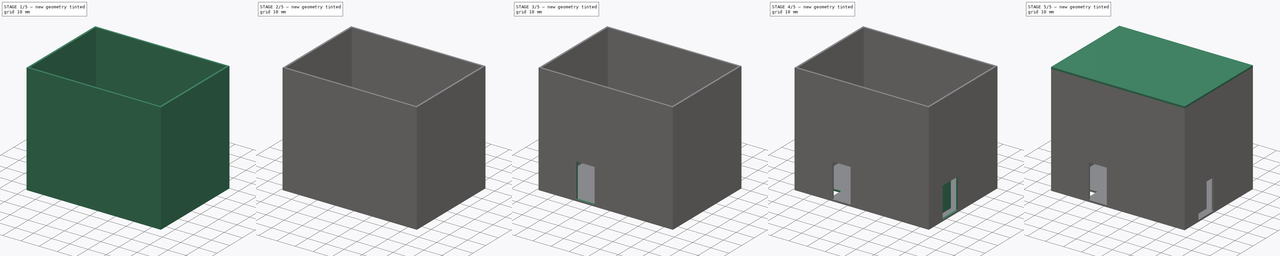
[diagram: build sequence overview — one tinted view per stage of 5, left to right]
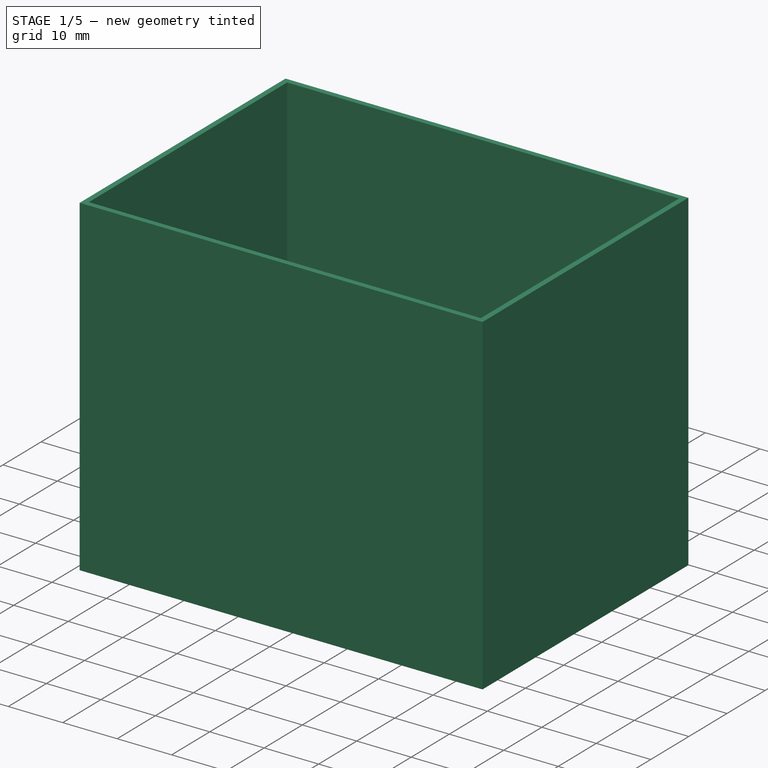
[diagram: stage 1 of 5 — iso view after this stage's code; geometry added in this stage tinted green]
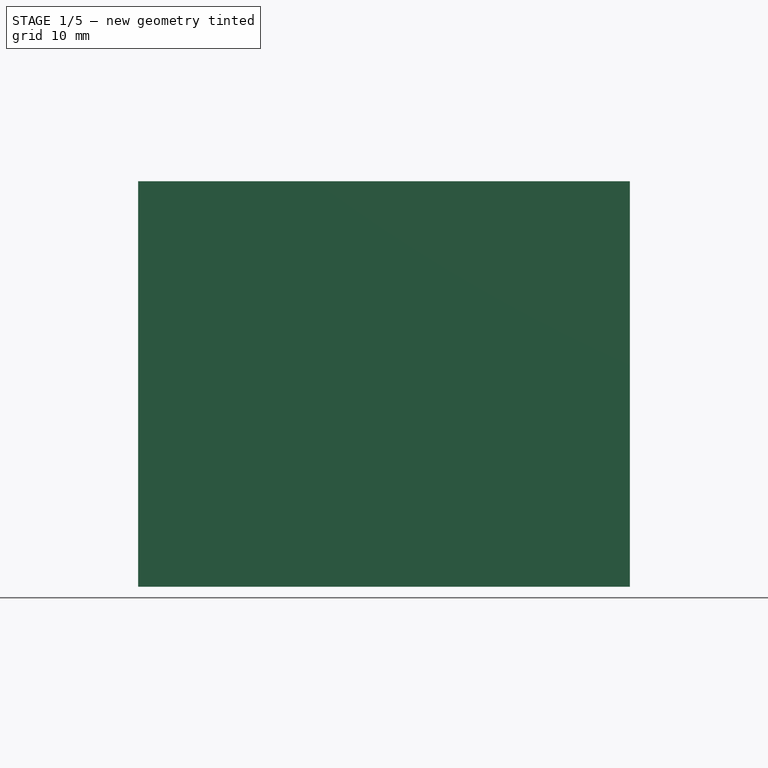
[diagram: stage 1 of 5 — front view after this stage's code; geometry added in this stage tinted green]
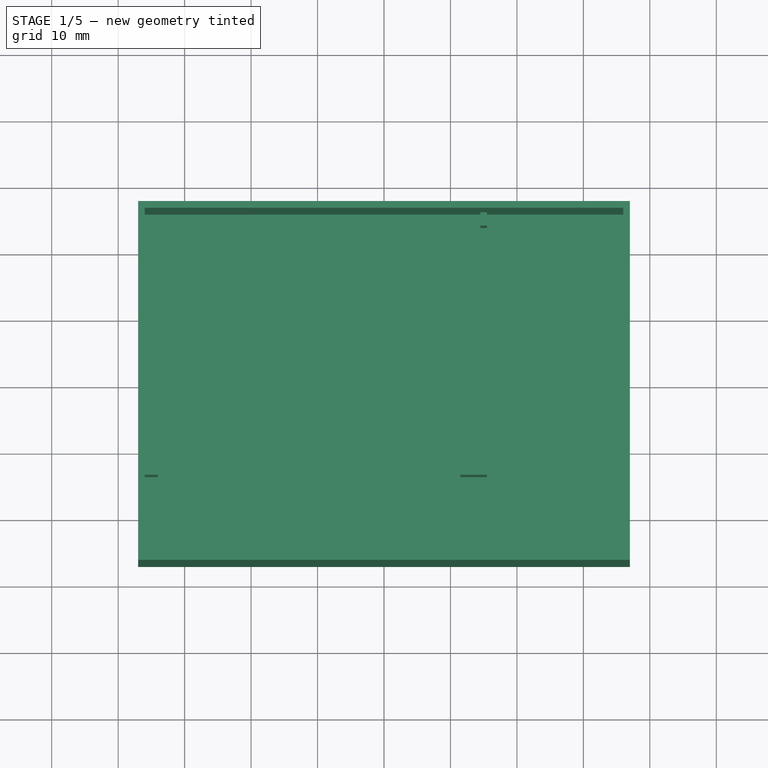
[diagram: stage 1 of 5 — top view after this stage's code; geometry added in this stage tinted green]
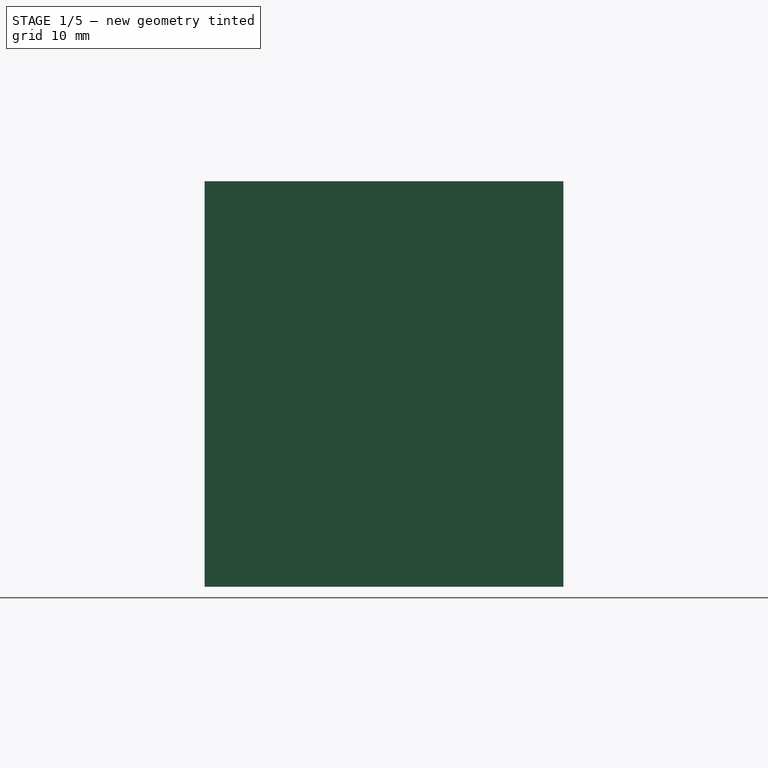
[diagram: stage 1 of 5 — right view after this stage's code; geometry added in this stage tinted green]
FCSTD DOCUMENT  (FreeCAD 0.21R33694 (Git))
Label: 3D-Models
License: All rights reserved
LicenseURL: https://en.wikipedia.org/wiki/All_rights_reserved
objects: Sketcher::SketchObject×13, PartDesign::Pad×7, PartDesign::Pocket×5, PartDesign::Fillet×3, PartDesign::Body×2, PartDesign::Thickness×1, PartDesign::ShapeBinder×1
note: 48 computed .brp shape members not serialized (recipe doc carries the construction recipe); baked Part::Feature solids carry a one-line shape summary decoded from their .brp

FEATURE [Sketcher::SketchObject] Sketch
  FullyConstrained = true
  MapMode = 5
  Support = -> [XY_Plane]
  sketch-geometry (8):
    g0: LineSegment StartX=-35 StartY=25 StartZ=0 EndX=35 EndY=25 EndZ=0
    g1: LineSegment StartX=35 StartY=25 StartZ=0 EndX=35 EndY=-25 EndZ=0
    g2: LineSegment StartX=35 StartY=-25 StartZ=0 EndX=-35 EndY=-25 EndZ=0
    g3: LineSegment StartX=-35 StartY=-25 StartZ=0 EndX=-35 EndY=25 EndZ=0
    g4: LineSegment StartX=-36 StartY=26 StartZ=0 EndX=36 EndY=26 EndZ=0
    g5: LineSegment StartX=36 StartY=26 StartZ=0 EndX=36 EndY=-26 EndZ=0
    g6: LineSegment StartX=36 StartY=-26 StartZ=0 EndX=-36 EndY=-26 EndZ=0
    g7: LineSegment StartX=-36 StartY=-26 StartZ=0 EndX=-36 EndY=26 EndZ=0
  constraints (24):
    c: Coincident(g0,g1)
    c: Coincident(g1,g2)
    c: Coincident(g2,g3)
    c: Coincident(g3,g0)
    c: Horizontal(g0)
    c: Horizontal(g2)
    c: Vertical(g1)
    c: Vertical(g3)
    c: DistanceX(g0,g0) = 70
    c: DistanceY(g3,g3) = 50
    c: DistanceX(g0,g-1) = 35
    c: DistanceY(g-1,g0) = 25
    c: Coincident(g4,g5)
    c: Coincident(g5,g6)
    c: Coincident(g6,g7)
    c: Coincident(g7,g4)
    c: Horizontal(g4)
    c: Horizontal(g6)
    c: Vertical(g5)
    c: Vertical(g7)
    c: DistanceY(g5,g1) = 1
    c: DistanceY(g0,g4) = 1
    c: DistanceX(g4,g0) = 1
    c: DistanceX(g1,g5) = 1
FEATURE [PartDesign::Pad] Pad
  Direction = (0,0,1)
  Length = 60
  Length2 = 10
  Profile = -> Sketch
  ReferenceAxis = -> Sketch [N_Axis]
  Type = 0
FEATURE [PartDesign::Thickness] Thickness
  Base = -> Pad [Face6]
  BaseFeature = -> Pad
  Intersection = false
  Join = 1
  Mode = 0
  SupportTransform = false
  Value = 1
FEATURE [Sketcher::SketchObject] Sketch001
  FullyConstrained = true
  MapMode = 5
  Support = -> [Thickness]
FEATURE [Sketcher::SketchObject] Sketch002
  ExternalGeometry = -> [Thickness]
  FullyConstrained = true
  MapMode = 5
  Support = -> [Thickness]
  sketch-geometry (20):
    g0: LineSegment StartX=-36 StartY=26 StartZ=0 EndX=14.5 EndY=26 EndZ=0
    g1: LineSegment StartX=14.5 StartY=26 StartZ=0 EndX=14.5 EndY=-12.5 EndZ=0
    g2: LineSegment StartX=14.5 StartY=-12.5 StartZ=0 EndX=-36 EndY=-12.5 EndZ=0
    g3: LineSegment StartX=-36 StartY=-12.5 StartZ=0 EndX=-36 EndY=26 EndZ=0
    g4: LineSegment StartX=15.5 StartY=-13.5 StartZ=0 EndX=11.5 EndY=-13.5 EndZ=0
    g5: LineSegment StartX=11.5 StartY=-13.5 StartZ=0 EndX=11.5 EndY=-9.5 EndZ=0
    g6: LineSegment StartX=11.5 StartY=-9.5 StartZ=0 EndX=15.5 EndY=-9.5 EndZ=0
    g7: LineSegment StartX=15.5 StartY=-9.5 StartZ=0 EndX=15.5 EndY=-13.5 EndZ=0
    g8: LineSegment StartX=11.5 StartY=-13.5 StartZ=0 EndX=11.5 EndY=-12.5 EndZ=0
    g9: LineSegment StartX=11.5 StartY=-12.5 StartZ=0 EndX=14.5 EndY=-12.5 EndZ=0
    g10: LineSegment StartX=14.5 StartY=-12.5 StartZ=0 EndX=14.5 EndY=-9.5 EndZ=0
    g11: LineSegment StartX=14.5 StartY=-9.5 StartZ=0 EndX=15.5 EndY=-9.5 EndZ=0
    g12: LineSegment StartX=14.5 StartY=26 StartZ=0 EndX=15.5 EndY=26 EndZ=0
    g13: LineSegment StartX=15.5 StartY=26 StartZ=0 EndX=15.5 EndY=24 EndZ=0
    g14: LineSegment StartX=15.5 StartY=24 StartZ=0 EndX=14.5 EndY=24 EndZ=0
    g15: LineSegment StartX=14.5 StartY=24 StartZ=0 EndX=14.5 EndY=26 EndZ=0
    g16: LineSegment StartX=-36 StartY=-12.5 StartZ=0 EndX=-34 EndY=-12.5 EndZ=0
    g17: LineSegment StartX=-34 StartY=-12.5 StartZ=0 EndX=-34 EndY=-13.5 EndZ=0
    g18: LineSegment StartX=-34 StartY=-13.5 StartZ=0 EndX=-36 EndY=-13.5 EndZ=0
    g19: LineSegment StartX=-36 StartY=-13.5 StartZ=0 EndX=-36 EndY=-12.5 EndZ=0
  constraints (56):
    c: Coincident(g0,g1)
    c: Coincident(g1,g2)
    c: Coincident(g2,g3)
    c: Coincident(g3,g0)
    c: Horizontal(g0)
    c: Horizontal(g2)
    c: Vertical(g1)
    c: Vertical(g3)
    c: Coincident(g0,g-4)
    c: DistanceX(g2,g2) = 50.5
    c: DistanceY(g1,g1) = 38.5
    c: Coincident(g4,g5)
    c: Coincident(g5,g6)
    c: Coincident(g6,g7)
    c: Coincident(g7,g4)
    c: Horizontal(g4)
    c: Horizontal(g6)
    c: Vertical(g5)
    c: Vertical(g7)
    c: DistanceX(g1,g6) = 1
    c: DistanceY(g4,g1) = 1
    c: DistanceX(g4,g1) = 3
    c: DistanceY(g1,g6) = 3
    c: Coincident(g8,g4)
    c: Vertical(g8)
    c: Coincident(g9,g8)
    c: Horizontal(g9)
    c: Coincident(g10,g9)
    c: Vertical(g10)
    c: Coincident(g11,g10)
    c: Coincident(g11,g7)
    c: Horizontal(g11)
    c: DistanceY(g4,g9) = 1
    c: DistanceX(g9,g4) = 1
    c: Coincident(g12,g13)
    c: Coincident(g13,g14)
    c: Coincident(g14,g15)
    c: Coincident(g15,g12)
    c: Horizontal(g12)
    c: Horizontal(g14)
    c: Vertical(g13)
    c: Vertical(g15)
    c: Coincident(g12,g0)
    c: DistanceX(g14,g14) = 1
    c: DistanceY(g13,g13) = 2
    c: Coincident(g16,g17)
    c: Coincident(g17,g18)
    c: Coincident(g18,g19)
    c: Coincident(g19,g16)
    c: Horizontal(g16)
    c: Horizontal(g18)
    c: Vertical(g17)
    c: Vertical(g19)
    c: Coincident(g16,g2)
    c: DistanceX(g18,g18) = 2
    c: DistanceY(g17,g17) = 1
FEATURE [PartDesign::Pad] Pad001
  BaseFeature = -> Thickness
  Direction = (0,0,1)
  Length = 21
  Length2 = 10
  Profile = -> Sketch002
  ReferenceAxis = -> Sketch002 [N_Axis]
  Type = 0
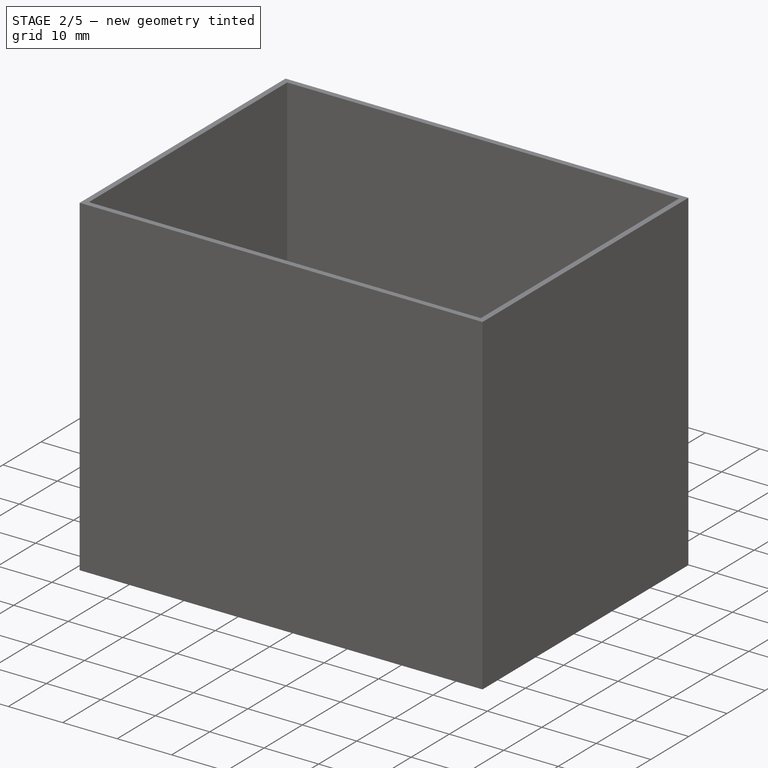
[diagram: stage 2 of 5 — iso view after this stage's code; geometry added in this stage tinted green]
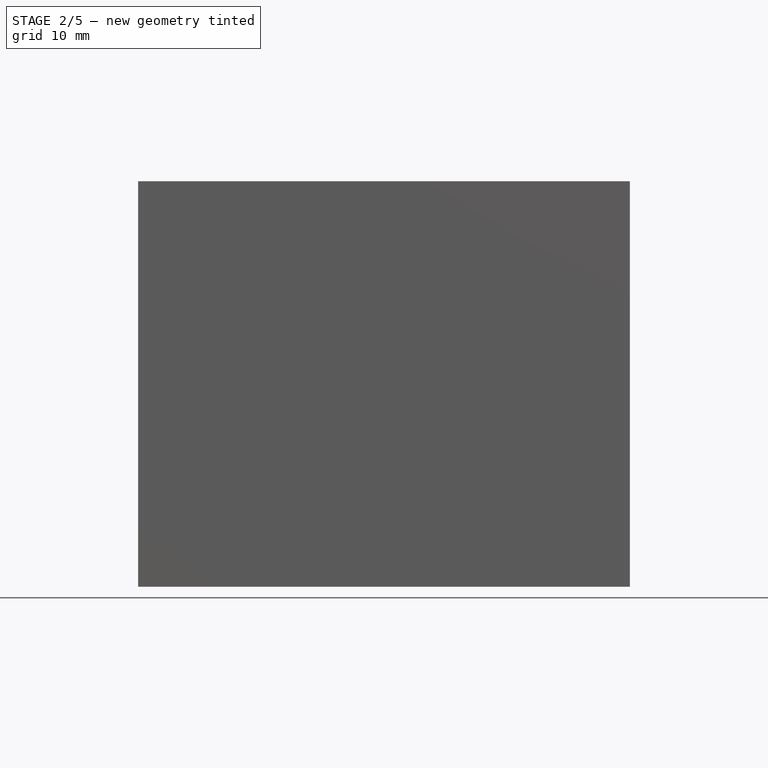
[diagram: stage 2 of 5 — front view after this stage's code; geometry added in this stage tinted green]
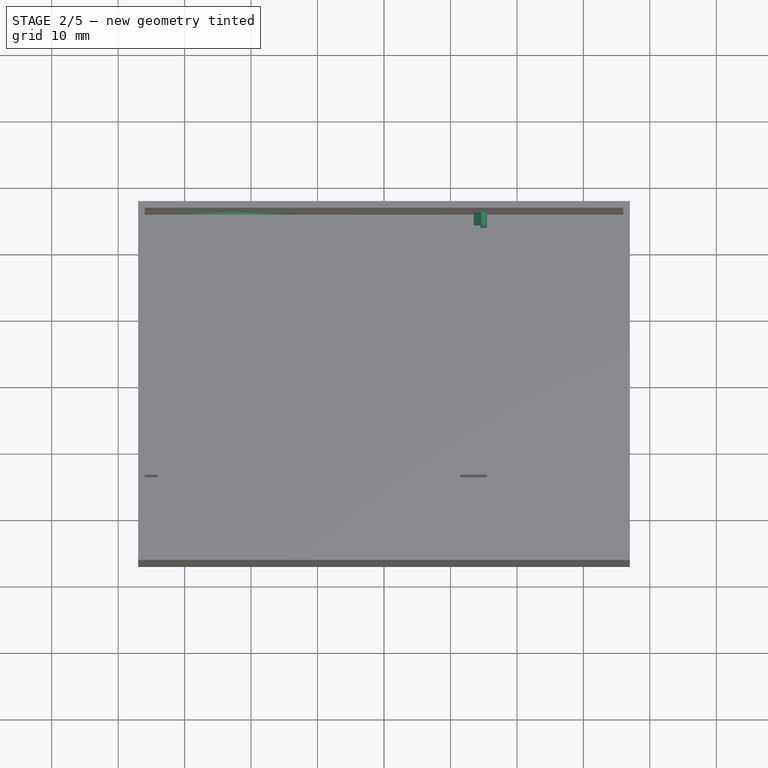
[diagram: stage 2 of 5 — top view after this stage's code; geometry added in this stage tinted green]
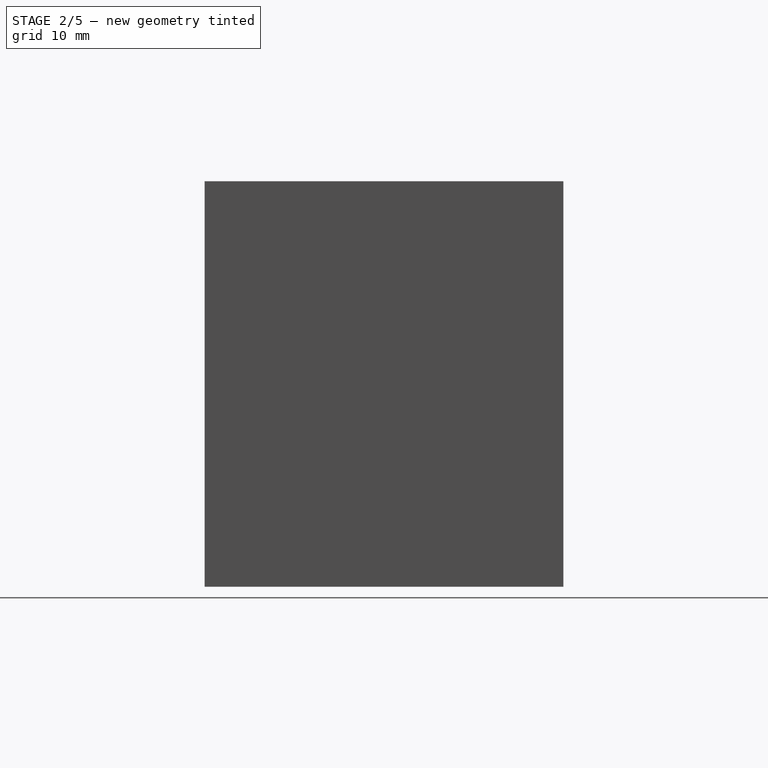
[diagram: stage 2 of 5 — right view after this stage's code; geometry added in this stage tinted green]
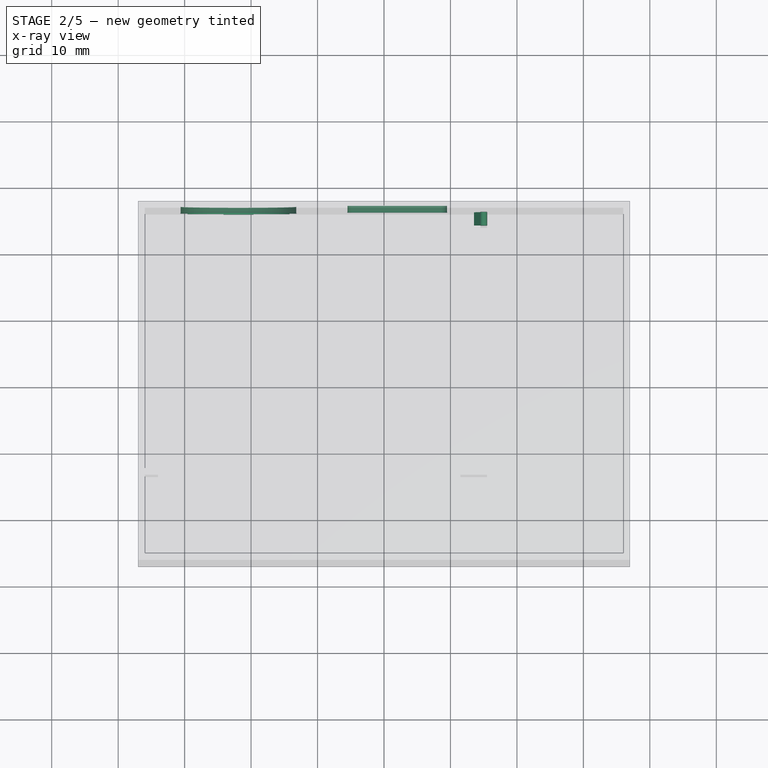
[diagram: stage 2 of 5 — x-ray composite at the top view; earlier geometry ghosted, this stage's added geometry solid]
FEATURE [Sketcher::SketchObject] Sketch003
  ExternalGeometry = -> [Pad001]
  FullyConstrained = true
  MapMode = 5
  Placement = pos=(0,26,0) rot=(1,0,0;1.5708rad)
  Support = -> [Pad001]
  sketch-geometry (17):
    g0: LineSegment StartX=-36 StartY=-1.07e-14 StartZ=0 EndX=14 EndY=-1.07e-14 EndZ=0
    g1: LineSegment StartX=14 StartY=-1.07e-14 StartZ=0 EndX=14 EndY=21 EndZ=0
    g2: LineSegment StartX=14 StartY=21 StartZ=0 EndX=-36 EndY=21 EndZ=0
    g3: LineSegment StartX=-36 StartY=21 StartZ=0 EndX=-36 EndY=-1.07e-14 EndZ=0
    g4: LineSegment StartX=-36 StartY=19 StartZ=0 EndX=-30.6 EndY=19 EndZ=0
    g5: LineSegment StartX=-13.2 StartY=-1.16e-14 StartZ=0 EndX=-13.2 EndY=1.6 EndZ=0
    g6: LineSegment StartX=-30.6 StartY=19 StartZ=0 EndX=-13.2 EndY=19 EndZ=0
    g7: LineSegment StartX=-13.2 StartY=19 StartZ=0 EndX=-13.2 EndY=1.6 EndZ=0
    g8: LineSegment StartX=-13.2 StartY=1.6 StartZ=0 EndX=-30.6 EndY=1.6 EndZ=0
    g9: LineSegment StartX=-30.6 StartY=1.6 StartZ=0 EndX=-30.6 EndY=19 EndZ=0
    g10: Circle CenterX=-21.9 CenterY=10.3 CenterZ=0 NormalX=0 NormalY=0 NormalZ=1 AngleXU=0 Radius=8.7
    g11: LineSegment StartX=-5.5 StartY=21 StartZ=0 EndX=-5.5 EndY=20 EndZ=0
    g12: LineSegment StartX=14 StartY=18 StartZ=0 EndX=9.5 EndY=18 EndZ=0
    g13: LineSegment StartX=-5.5 StartY=20 StartZ=0 EndX=9.5 EndY=20 EndZ=0
    g14: LineSegment StartX=9.5 StartY=20 StartZ=0 EndX=9.5 EndY=18 EndZ=0
    g15: LineSegment StartX=9.5 StartY=18 StartZ=0 EndX=-5.5 EndY=18 EndZ=0
    g16: LineSegment StartX=-5.5 StartY=18 StartZ=0 EndX=-5.5 EndY=20 EndZ=0
  constraints (50):
    c: Coincident(g0,g1)
    c: Coincident(g1,g2)
    c: Coincident(g2,g3)
    c: Coincident(g3,g0)
    c: Horizontal(g0)
    c: Horizontal(g2)
    c: Vertical(g1)
    c: Vertical(g3)
    c: Coincident(g0,g-4)
    c: DistanceX(g2,g2) = 50
    c: DistanceY(g1,g1) = 21
    c: PointOnObject(g4,g3)
    c: Horizontal(g4)
    c: PointOnObject(g5,g0)
    c: Vertical(g5)
    c: DistanceX(g4,g4) = 5.4
    c: DistanceY(g5,g5) = 1.6
    c: Coincident(g6,g7)
    c: Coincident(g7,g8)
    c: Coincident(g8,g9)
    c: Coincident(g9,g6)
    c: Horizontal(g6)
    c: Horizontal(g8)
    c: Vertical(g7)
    c: Vertical(g9)
    c: Coincident(g6,g4)
    c: Coincident(g7,g5)
    c: DistanceX(g8,g8) = 17.4
    c: Equal(g7,g8)
    c: Tangent(g10,g6)
    c: Tangent(g10,g9)
    c: Tangent(g10,g7)
    c: PointOnObject(g11,g2)
    c: Vertical(g11)
    c: PointOnObject(g12,g1)
    c: Horizontal(g12)
    c: DistanceX(g12,g12) = 4.5
    c: DistanceY(g11,g11) = 1
    c: Coincident(g13,g14)
    c: Coincident(g14,g15)
    c: Coincident(g15,g16)
    c: Coincident(g16,g13)
    c: Horizontal(g13)
    c: Horizontal(g15)
    c: Vertical(g14)
    c: Vertical(g16)
    c: Coincident(g13,g11)
    c: Coincident(g14,g12)
    c: DistanceX(g15,g15) = 15
    c: DistanceY(g16,g16) = 2
FEATURE [PartDesign::Pocket] Pocket
  BaseFeature = -> Pad001
  Direction = (0,1,-2e-16)
  Length = 5
  Length2 = 5
  Profile = -> Sketch003
  ReferenceAxis = -> Sketch003 [N_Axis]
  Type = 0
FEATURE [PartDesign::Fillet] Fillet
  Base = -> Pocket [Edge52,Edge49,Edge47,Edge50]
  BaseFeature = -> Pocket
  Radius = 0.99
  SupportTransform = false
  UseAllEdges = false
FEATURE [Sketcher::SketchObject] Sketch004
  ExternalGeometry = -> [Fillet]
  FullyConstrained = true
  MapMode = 5
  Placement = pos=(0,26,0) rot=(1,0,0;1.5708rad)
  Support = -> [Fillet]
  sketch-geometry (5):
    g0: LineSegment StartX=15.5 StartY=21 StartZ=0 EndX=13.5 EndY=21 EndZ=0
    g1: LineSegment StartX=15.5 StartY=21 StartZ=0 EndX=15.5 EndY=22.1972 EndZ=0
    g2: LineSegment StartX=13.5 StartY=21 StartZ=0 EndX=14.5 EndY=22.5 EndZ=0
    g3: ArcOfCircle CenterX=14.9542 CenterY=22.1972 CenterZ=0 NormalX=0 NormalY=0 NormalZ=1 AngleXU=0 Radius=0.545837 StartAngle=-2.7e-15 EndAngle=2.55359
    g4: GeomPoint X=15.5 Y=24 Z=0
  constraints (12):
    c: Coincident(g0,g-4)
    c: Horizontal(g0)
    c: DistanceX(g0,g-3) = 1
    c: Coincident(g1,g0)
    c: Vertical(g1)
    c: Coincident(g2,g0)
    c: DistanceY(g1,g4) = 3
    c: PointOnObject(g4,g2)
    c: PointOnObject(g4,g1)
    c: Tangent(g2,g3) = 1.5708
    c: Tangent(g1,g3) = -1.5708
    c: DistanceX(g-3,g2) = 0
FEATURE [PartDesign::Pad] Pad002
  BaseFeature = -> Fillet
  Direction = (0,-1,2e-16)
  Length = 2
  Length2 = 10
  Profile = -> Sketch004
  ReferenceAxis = -> Sketch004 [N_Axis]
  Type = 3
  UpToFace = -> Fillet [Face19]
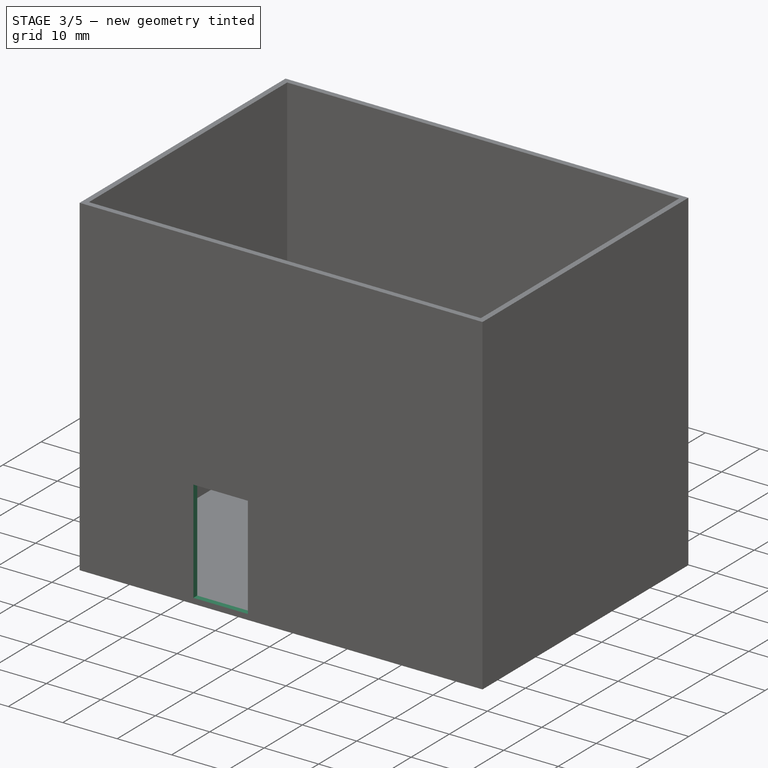
[diagram: stage 3 of 5 — iso view after this stage's code; geometry added in this stage tinted green]
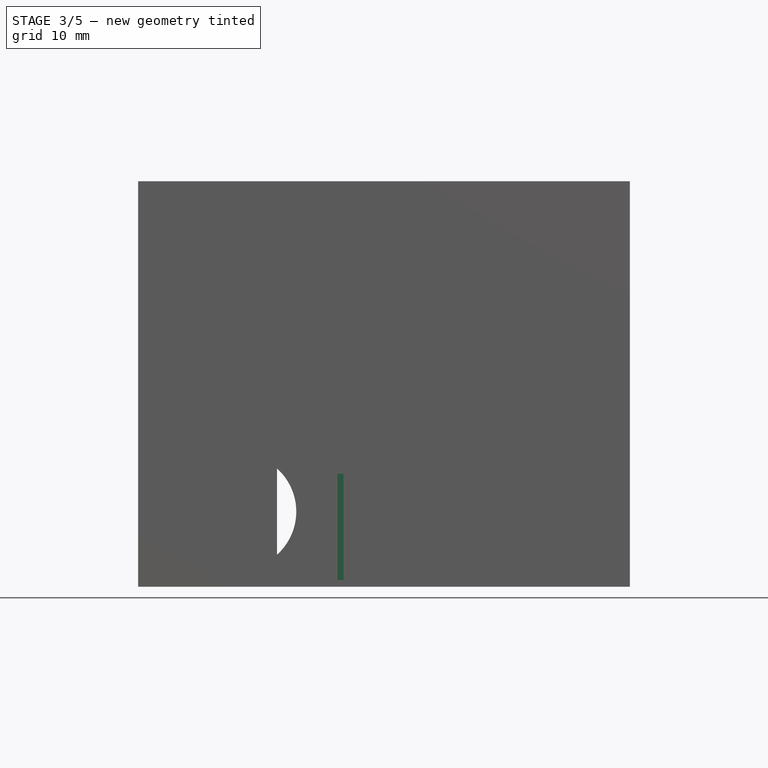
[diagram: stage 3 of 5 — front view after this stage's code; geometry added in this stage tinted green]
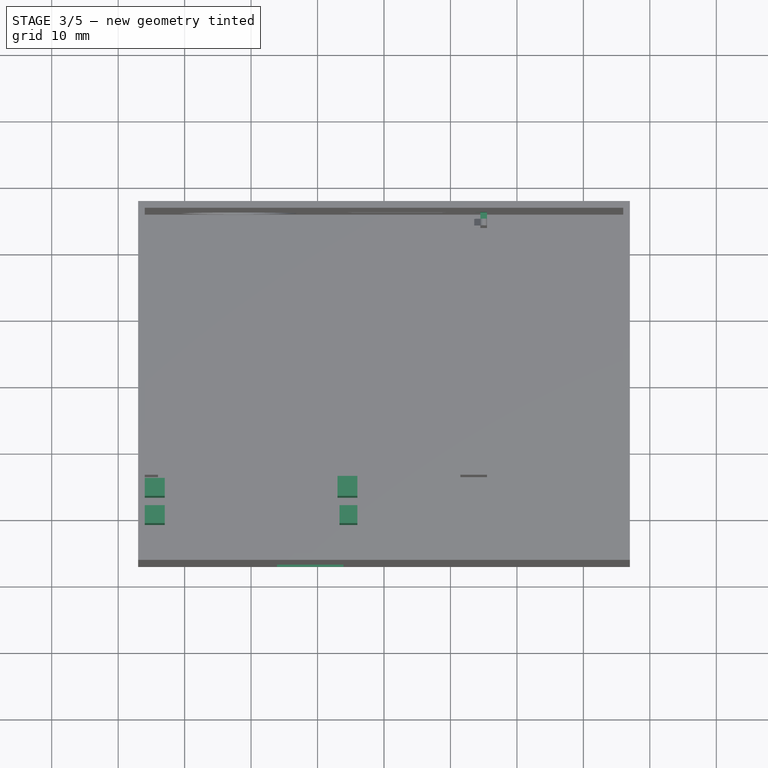
[diagram: stage 3 of 5 — top view after this stage's code; geometry added in this stage tinted green]
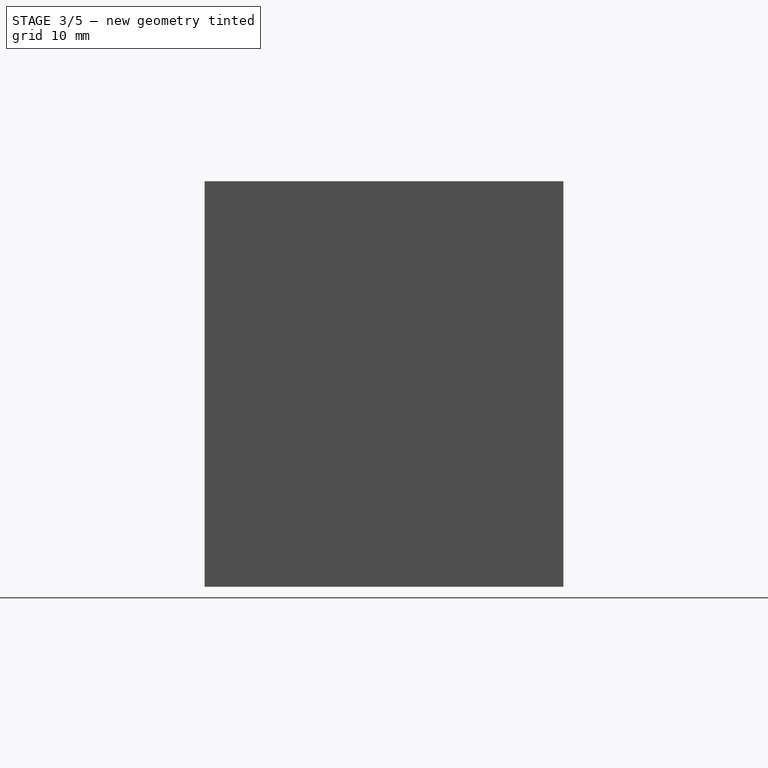
[diagram: stage 3 of 5 — right view after this stage's code; geometry added in this stage tinted green]
FEATURE [Sketcher::SketchObject] Sketch005
  ExternalGeometry = -> [Pad002]
  FullyConstrained = true
  MapMode = 5
  Placement = pos=(15.5,0,0) rot=(0.57735,0.57735,0.57735;2.0944rad)
  Support = -> [Pad002]
  sketch-geometry (9):
    g0: LineSegment StartX=24 StartY=22.7431 StartZ=0 EndX=25 EndY=22.7431 EndZ=0
    g1: LineSegment StartX=25 StartY=22.7431 StartZ=0 EndX=25 EndY=0 EndZ=0
    g2: LineSegment StartX=25 StartY=0 StartZ=0 EndX=24 EndY=0 EndZ=0
    g3: LineSegment StartX=24 StartY=0 StartZ=0 EndX=24 EndY=22.7431 EndZ=0
    g4: LineSegment StartX=25 StartY=18.7431 StartZ=0 EndX=26 EndY=18.7431 EndZ=0
    g5: LineSegment StartX=25 StartY=22.7431 StartZ=0 EndX=26 EndY=22.7431 EndZ=0
    g6: LineSegment StartX=26 StartY=22.7431 StartZ=0 EndX=26 EndY=18.7431 EndZ=0
    g7: LineSegment StartX=26 StartY=18.7431 StartZ=0 EndX=25 EndY=18.7431 EndZ=0
    g8: LineSegment StartX=25 StartY=18.7431 StartZ=0 EndX=25 EndY=22.7431 EndZ=0
  constraints (25):
    c: Coincident(g0,g1)
    c: Coincident(g1,g2)
    c: Coincident(g2,g3)
    c: Coincident(g3,g0)
    c: Horizontal(g0)
    c: Horizontal(g2)
    c: Vertical(g1)
    c: Vertical(g3)
    c: Coincident(g0,g-5)
    c: PointOnObject(g1,g-1)
    c: PointOnObject(g4,g1)
    c: PointOnObject(g4,g-6)
    c: Horizontal(g4)
    c: DistanceX(g4,g4) = 1
    c: DistanceY(g4,g0) = 4
    c: Coincident(g5,g6)
    c: Coincident(g6,g7)
    c: Coincident(g7,g8)
    c: Coincident(g8,g5)
    c: Horizontal(g5)
    c: Horizontal(g7)
    c: Vertical(g6)
    c: Vertical(g8)
    c: Coincident(g5,g0)
    c: Coincident(g6,g4)
FEATURE [PartDesign::Pocket] Pocket001
  BaseFeature = -> Pad002
  Direction = (-1,0,0)
  Length = 2
  Length2 = 5
  Profile = -> Sketch005
  ReferenceAxis = -> Sketch005 [N_Axis]
  Type = 0
FEATURE [PartDesign::Fillet] Fillet001
  Base = -> Pocket001 [Edge109]
  BaseFeature = -> Pocket001
  Radius = 0.1
  SupportTransform = false
  UseAllEdges = false
FEATURE [Sketcher::SketchObject] Sketch006
  ExternalGeometry = -> [Fillet001]
  FullyConstrained = true
  MapMode = 5
  Support = -> [Fillet001]
  sketch-geometry (26):
    g0: LineSegment StartX=-33 StartY=-16.6 StartZ=0 EndX=-7 EndY=-16.6 EndZ=0
    g1: LineSegment StartX=-7 StartY=-16.6 StartZ=0 EndX=-7 EndY=-26 EndZ=0
    g2: LineSegment StartX=-7 StartY=-26 StartZ=0 EndX=-33 EndY=-26 EndZ=0
    g3: LineSegment StartX=-33 StartY=-26 StartZ=0 EndX=-33 EndY=-16.6 EndZ=0
    g4: LineSegment StartX=-7 StartY=-16.6 StartZ=0 EndX=-4 EndY=-16.6 EndZ=0
    g5: LineSegment StartX=-4 StartY=-16.6 StartZ=0 EndX=-4 EndY=-18 EndZ=0
    g6: LineSegment StartX=-4 StartY=-18 StartZ=0 EndX=-7 EndY=-18 EndZ=0
    g7: LineSegment StartX=-33 StartY=-16.6 StartZ=0 EndX=-36 EndY=-16.6 EndZ=0
    g8: LineSegment StartX=-36 StartY=-16.6 StartZ=0 EndX=-36 EndY=-18 EndZ=0
    g9: LineSegment StartX=-36 StartY=-18 StartZ=0 EndX=-33 EndY=-18 EndZ=0
    g10: LineSegment StartX=-4 StartY=-18 StartZ=0 EndX=-6.7 EndY=-18 EndZ=0
    g11: LineSegment StartX=-6.7 StartY=-18 StartZ=0 EndX=-6.7 EndY=-20.7 EndZ=0
    g12: LineSegment StartX=-6.7 StartY=-20.7 StartZ=0 EndX=-4 EndY=-20.7 EndZ=0
    g13: LineSegment StartX=-4 StartY=-20.7 StartZ=0 EndX=-4 EndY=-18 EndZ=0
    g14: LineSegment StartX=-33 StartY=-18 StartZ=0 EndX=-36 EndY=-18 EndZ=0
    g15: LineSegment StartX=-36 StartY=-18 StartZ=0 EndX=-36 EndY=-20.7 EndZ=0
    g16: LineSegment StartX=-36 StartY=-20.7 StartZ=0 EndX=-33 EndY=-20.7 EndZ=0
    g17: LineSegment StartX=-33 StartY=-20.7 StartZ=0 EndX=-33 EndY=-18 EndZ=0
    g18: LineSegment StartX=-33 StartY=-16.6 StartZ=0 EndX=-36 EndY=-16.6 EndZ=0
    g19: LineSegment StartX=-36 StartY=-16.6 StartZ=0 EndX=-36 EndY=-13.9 EndZ=0
    g20: LineSegment StartX=-36 StartY=-13.9 StartZ=0 EndX=-33 EndY=-13.9 EndZ=0
    g21: LineSegment StartX=-33 StartY=-13.9 StartZ=0 EndX=-33 EndY=-16.6 EndZ=0
    g22: LineSegment StartX=-4 StartY=-16.6 StartZ=0 EndX=-7 EndY=-16.6 EndZ=0
    g23: LineSegment StartX=-7 StartY=-16.6 StartZ=0 EndX=-7 EndY=-13.6 EndZ=0
    g24: LineSegment StartX=-7 StartY=-13.6 StartZ=0 EndX=-4 EndY=-13.6 EndZ=0
    g25: LineSegment StartX=-4 StartY=-13.6 StartZ=0 EndX=-4 EndY=-16.6 EndZ=0
  constraints (74):
    c: Coincident(g0,g1)
    c: Coincident(g1,g2)
    c: Coincident(g2,g3)
    c: Coincident(g3,g0)
    c: Horizontal(g0)
    c: Horizontal(g2)
    c: Vertical(g1)
    c: Vertical(g3)
    c: DistanceX(g2,g2) = 26
    c: DistanceY(g1,g1) = 9.4
    c: Coincident(g4,g0)
    c: Horizontal(g4)
    c: Coincident(g5,g4)
    c: Vertical(g5)
    c: Coincident(g6,g5)
    c: PointOnObject(g6,g1)
    c: Horizontal(g6)
    c: Coincident(g7,g0)
    c: Horizontal(g7)
    c: Coincident(g8,g7)
    c: Vertical(g8)
    c: Coincident(g9,g8)
    c: PointOnObject(g9,g3)
    c: Horizontal(g9)
    c: DistanceX(g7,g7) = 3
    c: DistanceX(g4,g4) = 3
    c: DistanceY(g5,g5) = 1.4
    c: DistanceY(g8,g8) = 1.4
    c: DistanceX(g-6,g7) = 0
    c: DistanceY(g-6,g2) = 0
    c: Coincident(g10,g11)
    c: Coincident(g11,g12)
    c: Coincident(g12,g13)
    c: Coincident(g13,g10)
    c: Horizontal(g10)
    c: Horizontal(g12)
    c: Vertical(g11)
    c: Vertical(g13)
    c: Coincident(g10,g5)
    c: DistanceX(g12,g12) = 2.7
    c: DistanceY(g11,g11) = 2.7
    c: Coincident(g14,g15)
    c: Coincident(g15,g16)
    c: Coincident(g16,g17)
    c: Coincident(g17,g14)
    c: Horizontal(g14)
    c: Horizontal(g16)
    c: Vertical(g15)
    c: Vertical(g17)
    c: Coincident(g14,g9)
    c: PointOnObject(g15,g-6)
    c: DistanceY(g17,g17) = 2.7
    c: Coincident(g18,g19)
    c: Coincident(g19,g20)
    c: Coincident(g20,g21)
    c: Coincident(g21,g18)
    c: Horizontal(g18)
    c: Horizontal(g20)
    c: Vertical(g19)
    c: Vertical(g21)
    c: Coincident(g18,g0)
    c: PointOnObject(g19,g-6)
    c: DistanceY(g21,g21) = 2.7
    c: Coincident(g22,g23)
    c: Coincident(g23,g24)
    c: Coincident(g24,g25)
    c: Coincident(g25,g22)
    c: Horizontal(g22)
    c: Horizontal(g24)
    c: Vertical(g23)
    c: Vertical(g25)
    c: Coincident(g22,g4)
    c: DistanceX(g24,g24) = 3
    c: DistanceY(g25,g25) = 3
FEATURE [PartDesign::Pad] Pad003
  BaseFeature = -> Fillet001
  Direction = (0,0,1)
  Length = 16
  Length2 = 10
  Profile = -> Sketch006
  ReferenceAxis = -> Sketch006 [N_Axis]
  Type = 0
FEATURE [PartDesign::Body] Body001  label="Lid"
  Group = -> [ShapeBinder,Sketch009,Pad004,Sketch010,Pad005,Fillet002]
  Origin = -> Origin001
  Tip = -> Fillet002
FEATURE [Sketcher::SketchObject] Sketch011
  ExternalGeometry = -> [Pad003]
  FullyConstrained = true
  MapMode = 5
  Placement = pos=(0,-27,0) rot=(1,0,0;1.5708rad)
  Support = -> [Pad003]
  sketch-geometry (8):
    g0: LineSegment StartX=-36 StartY=0 StartZ=0 EndX=-3.5 EndY=0 EndZ=0
    g1: LineSegment StartX=-3.5 StartY=0 StartZ=0 EndX=-3.5 EndY=19.9 EndZ=0
    g2: LineSegment StartX=-3.5 StartY=19.9 StartZ=0 EndX=-36 EndY=19.9 EndZ=0
    g3: LineSegment StartX=-36 StartY=19.9 StartZ=0 EndX=-36 EndY=0 EndZ=0
    g4: LineSegment StartX=-16.1 StartY=18.8 StartZ=0 EndX=-6.1 EndY=18.8 EndZ=0
    g5: LineSegment StartX=-6.1 StartY=18.8 StartZ=0 EndX=-6.1 EndY=0 EndZ=0
    g6: LineSegment StartX=-6.1 StartY=0 StartZ=0 EndX=-16.1 EndY=0 EndZ=0
    g7: LineSegment StartX=-16.1 StartY=0 StartZ=0 EndX=-16.1 EndY=18.8 EndZ=0
  constraints (23):
    c: Coincident(g0,g1)
    c: Coincident(g1,g2)
    c: Coincident(g2,g3)
    c: Coincident(g3,g0)
    c: Horizontal(g0)
    c: Horizontal(g2)
    c: Vertical(g1)
    c: Vertical(g3)
    c: Coincident(g0,g-3)
    c: DistanceY(g1,g1) = 19.9
    c: DistanceX(g0,g0) = 32.5
    c: Coincident(g4,g5)
    c: Coincident(g5,g6)
    c: Coincident(g6,g7)
    c: Coincident(g7,g4)
    c: Horizontal(g4)
    c: Horizontal(g6)
    c: Vertical(g5)
    c: Vertical(g7)
    c: DistanceX(g6,g6) = 10
    c: DistanceX(g2,g4) = 19.9
    c: DistanceY(g7,g7) = 18.8
    c: DistanceY(g5,g-1) = 0
FEATURE [PartDesign::Pocket] Pocket002
  BaseFeature = -> Pad003
  Direction = (0,1,-2e-16)
  Length = 1
  Length2 = 5
  Profile = -> Sketch011
  ReferenceAxis = -> Sketch011 [N_Axis]
  Type = 0
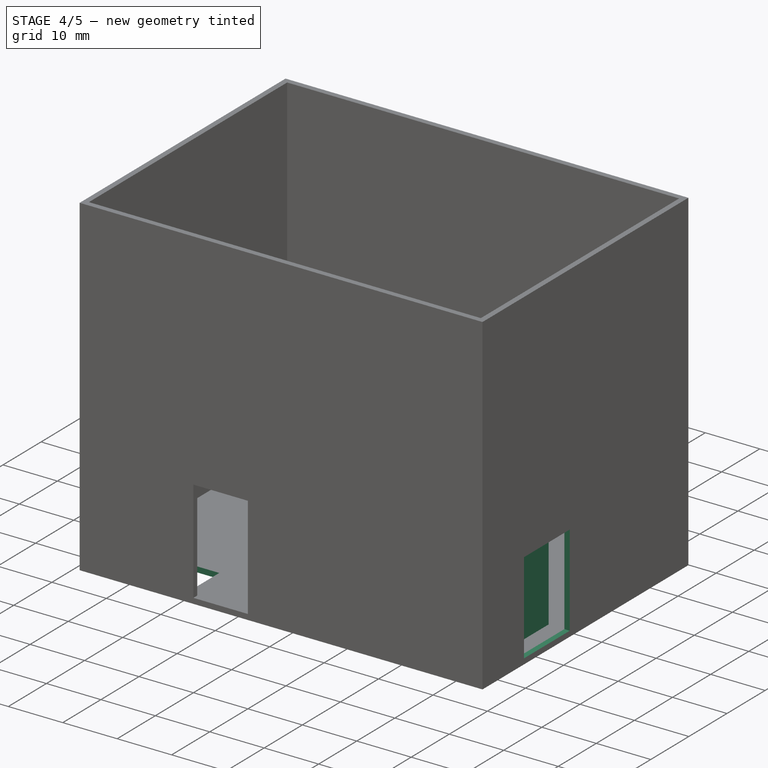
[diagram: stage 4 of 5 — iso view after this stage's code; geometry added in this stage tinted green]
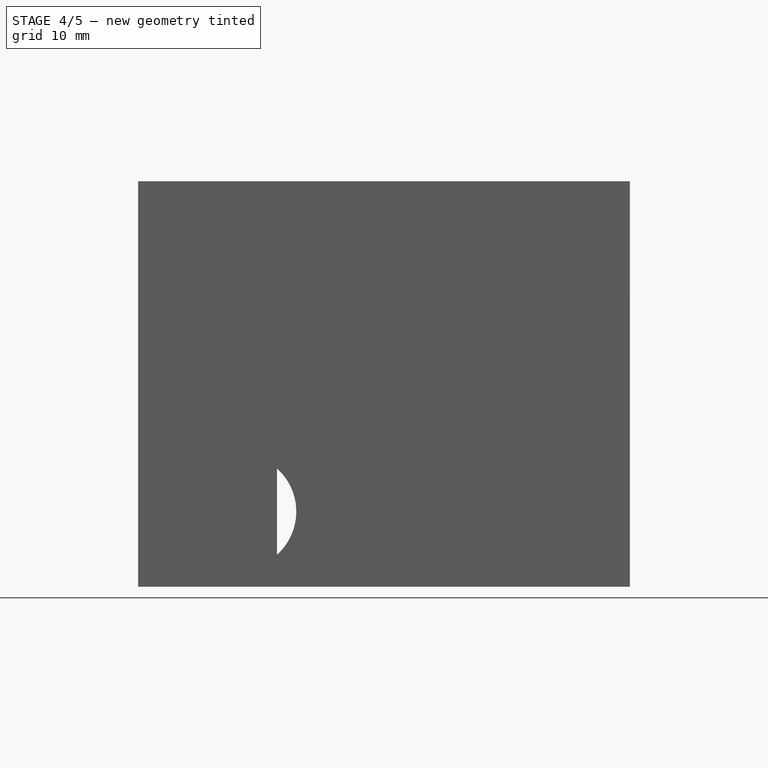
[diagram: stage 4 of 5 — front view after this stage's code; geometry added in this stage tinted green]
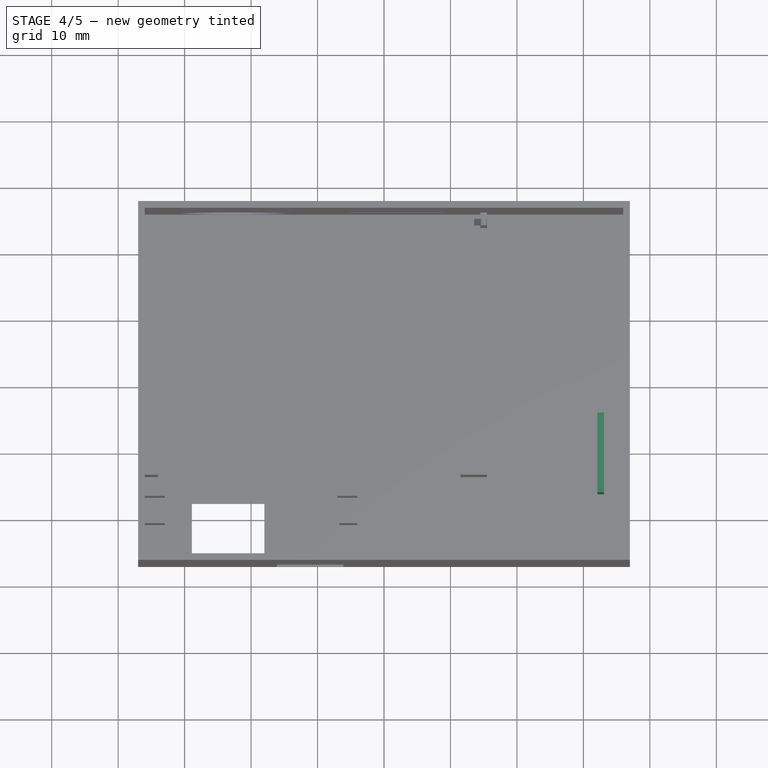
[diagram: stage 4 of 5 — top view after this stage's code; geometry added in this stage tinted green]
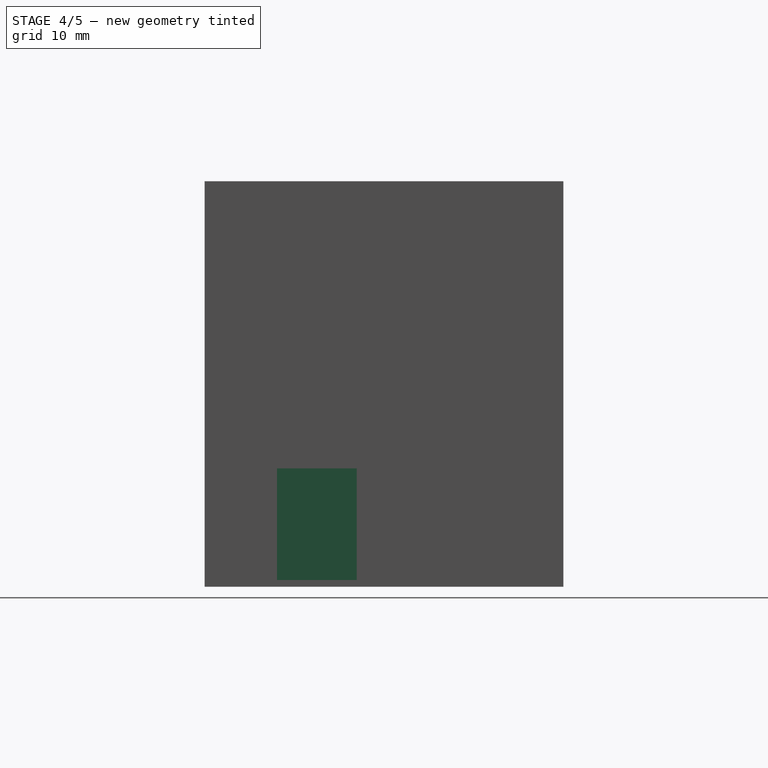
[diagram: stage 4 of 5 — right view after this stage's code; geometry added in this stage tinted green]
FEATURE [Sketcher::SketchObject] Sketch012
  ExternalGeometry = -> [Pocket002]
  FullyConstrained = true
  MapMode = 5
  Placement = pos=(0,0,-1) rot=(1,0,0;3.14159rad)
  Support = -> [Pocket002]
  sketch-geometry (4):
    g0: LineSegment StartX=-18 StartY=26 StartZ=0 EndX=-28.9 EndY=26 EndZ=0
    g1: LineSegment StartX=-28.9 StartY=26 StartZ=0 EndX=-28.9 EndY=17.5 EndZ=0
    g2: LineSegment StartX=-28.9 StartY=17.5 StartZ=0 EndX=-18 EndY=17.5 EndZ=0
    g3: LineSegment StartX=-18 StartY=17.5 StartZ=0 EndX=-18 EndY=26 EndZ=0
  constraints (12):
    c: Coincident(g0,g1)
    c: Coincident(g1,g2)
    c: Coincident(g2,g3)
    c: Coincident(g3,g0)
    c: Horizontal(g0)
    c: Horizontal(g2)
    c: Vertical(g1)
    c: Vertical(g3)
    c: DistanceX(g-4,g0) = 18
    c: DistanceX(g2,g2) = 10.9
    c: DistanceY(g3,g3) = 8.5
    c: DistanceY(g0,g-3) = 0
FEATURE [PartDesign::Pocket] Pocket003
  BaseFeature = -> Pocket002
  Direction = (0,0,1)
  Length = 1
  Length2 = 5
  Profile = -> Sketch012
  ReferenceAxis = -> Sketch012 [N_Axis]
  Type = 0
FEATURE [Sketcher::SketchObject] Sketch013
  ExternalGeometry = -> [Pocket003]
  FullyConstrained = true
  MapMode = 5
  Placement = pos=(37,0,0) rot=(0.57735,0.57735,0.57735;2.0944rad)
  Support = -> [Pocket003]
  sketch-geometry (9):
    g0: LineSegment StartX=-26 StartY=0 StartZ=0 EndX=-4.1 EndY=0 EndZ=0
    g1: LineSegment StartX=-4.1 StartY=0 StartZ=0 EndX=-4.1 EndY=25.5 EndZ=0
    g2: LineSegment StartX=-4.1 StartY=25.5 StartZ=0 EndX=-26 EndY=25.5 EndZ=0
    g3: LineSegment StartX=-26 StartY=25.5 StartZ=0 EndX=-26 EndY=0 EndZ=0
    g4: LineSegment StartX=-16.1 StartY=25.5 StartZ=0 EndX=-16.1 EndY=0 EndZ=0
    g5: LineSegment StartX=-16.1 StartY=0 StartZ=0 EndX=-4.1 EndY=0 EndZ=0
    g6: LineSegment StartX=-4.1 StartY=0 StartZ=0 EndX=-4.1 EndY=16.8 EndZ=0
    g7: LineSegment StartX=-4.1 StartY=16.8 StartZ=0 EndX=-16.1 EndY=16.8 EndZ=0
    g8: LineSegment StartX=-16.1 StartY=16.8 StartZ=0 EndX=-16.1 EndY=0 EndZ=0
  constraints (26):
    c: Coincident(g0,g1)
    c: Coincident(g1,g2)
    c: Coincident(g2,g3)
    c: Coincident(g3,g0)
    c: Horizontal(g0)
    c: Horizontal(g2)
    c: Vertical(g1)
    c: Vertical(g3)
    c: Coincident(g0,g-3)
    c: DistanceX(g2,g2) = 21.9
    c: DistanceY(g1,g1) = 25.5
    c: PointOnObject(g4,g2)
    c: PointOnObject(g4,g0)
    c: Vertical(g4)
    c: DistanceX(g4,g0) = 12
    c: Coincident(g5,g6)
    c: Coincident(g6,g7)
    c: Coincident(g7,g8)
    c: Coincident(g8,g5)
    c: Horizontal(g5)
    c: Horizontal(g7)
    c: Vertical(g6)
    c: Vertical(g8)
    c: Coincident(g5,g4)
    c: PointOnObject(g6,g1)
    c: DistanceY(g5,g6) = 16.8
FEATURE [PartDesign::Pocket] Pocket004
  BaseFeature = -> Pocket003
  Direction = (-1,0,0)
  Length = 1
  Length2 = 5
  Profile = -> Sketch013
  ReferenceAxis = -> Sketch013 [N_Axis]
  Type = 0
FEATURE [Sketcher::SketchObject] Sketch014
  ExternalGeometry = -> [Pocket004]
  FullyConstrained = true
  MapMode = 5
  Support = -> [Pocket004]
  sketch-geometry (4):
    g0: LineSegment StartX=33.1 StartY=-4.1 StartZ=0 EndX=32.1 EndY=-4.1 EndZ=0
    g1: LineSegment StartX=32.1 StartY=-4.1 StartZ=0 EndX=32.1 EndY=-16.1 EndZ=0
    g2: LineSegment StartX=32.1 StartY=-16.1 StartZ=0 EndX=33.1 EndY=-16.1 EndZ=0
    g3: LineSegment StartX=33.1 StartY=-16.1 StartZ=0 EndX=33.1 EndY=-4.1 EndZ=0
  constraints (12):
    c: Coincident(g0,g1)
    c: Coincident(g1,g2)
    c: Coincident(g2,g3)
    c: Coincident(g3,g0)
    c: Horizontal(g0)
    c: Horizontal(g2)
    c: Vertical(g1)
    c: Vertical(g3)
    c: DistanceX(g2,g2) = 1
    c: DistanceX(g2,g-6) = 2.9
    c: DistanceY(g0,g-5) = 0
    c: DistanceY(g2,g-6) = 0
FEATURE [PartDesign::Pad] Pad006
  BaseFeature = -> Pocket004
  Direction = (0,0,1)
  Length = 20
  Length2 = 10
  Profile = -> Sketch014
  ReferenceAxis = -> Sketch014 [N_Axis]
  Type = 0
FEATURE [PartDesign::Body] Body  label="Box"
  Group = -> [Sketch,Pad,Thickness,Sketch001,Sketch002,Pad001,Sketch003,Pocket,Fillet,Sketch004,Pad002,Sketch005,Pocket001,Fillet001,Sketch006,Pad003,Sketch011,Pocket002,Sketch012,Pocket003,Sketch013,Pocket004,Sketch014,Pad006]
  Origin = -> Origin
  Tip = -> Pad006
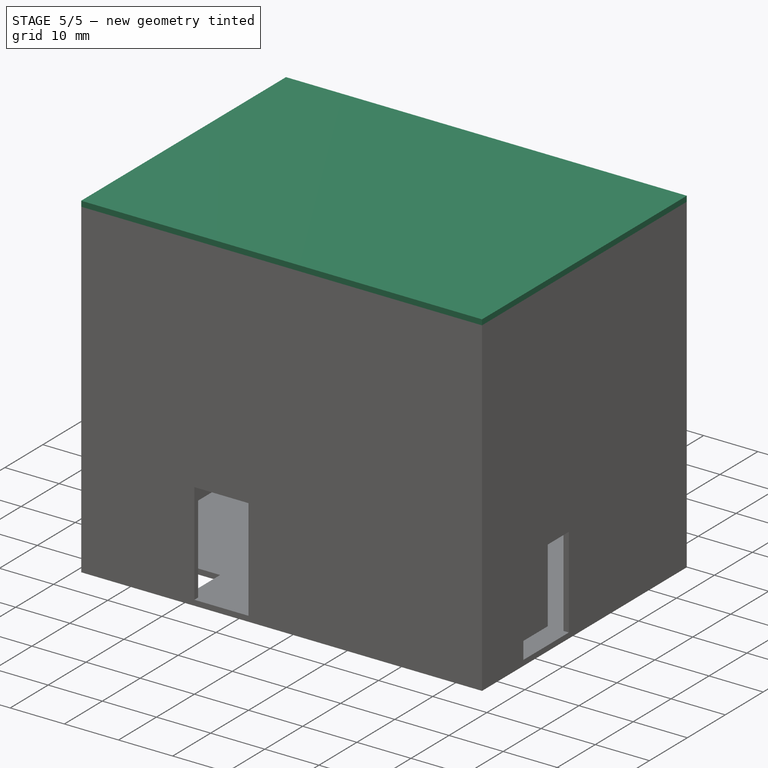
[diagram: stage 5 of 5 — iso view after this stage's code; geometry added in this stage tinted green]
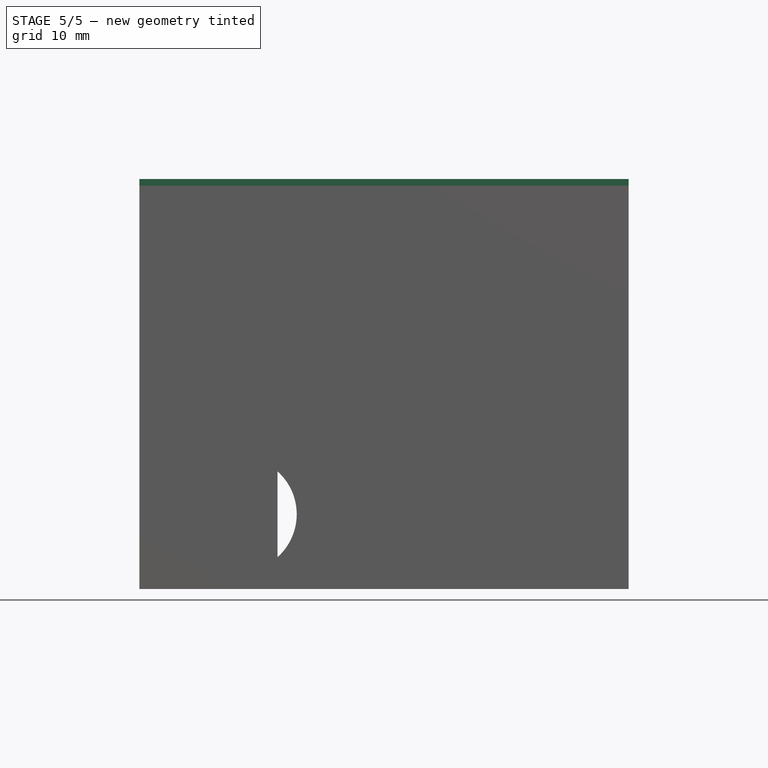
[diagram: stage 5 of 5 — front view after this stage's code; geometry added in this stage tinted green]
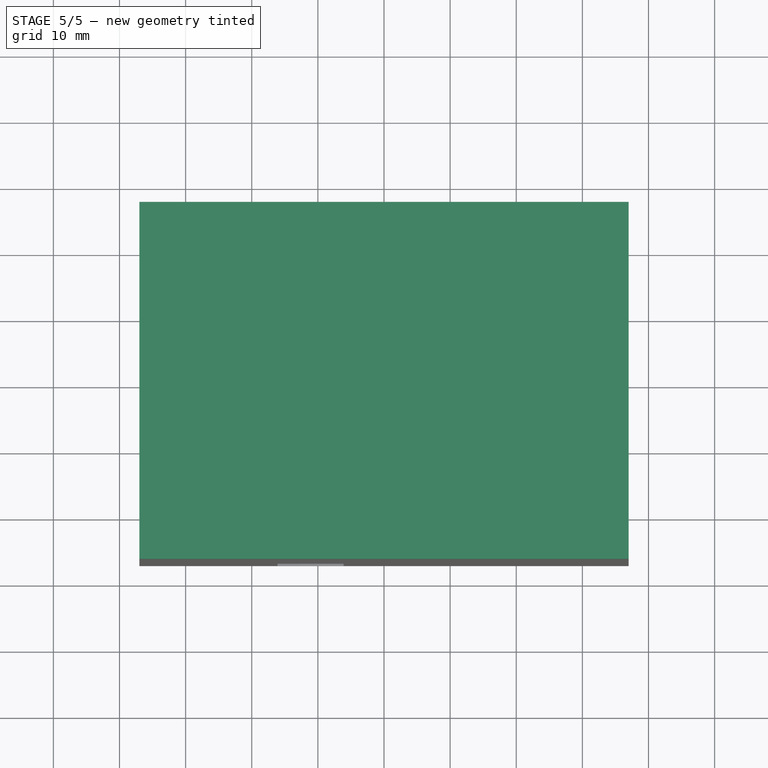
[diagram: stage 5 of 5 — top view after this stage's code; geometry added in this stage tinted green]
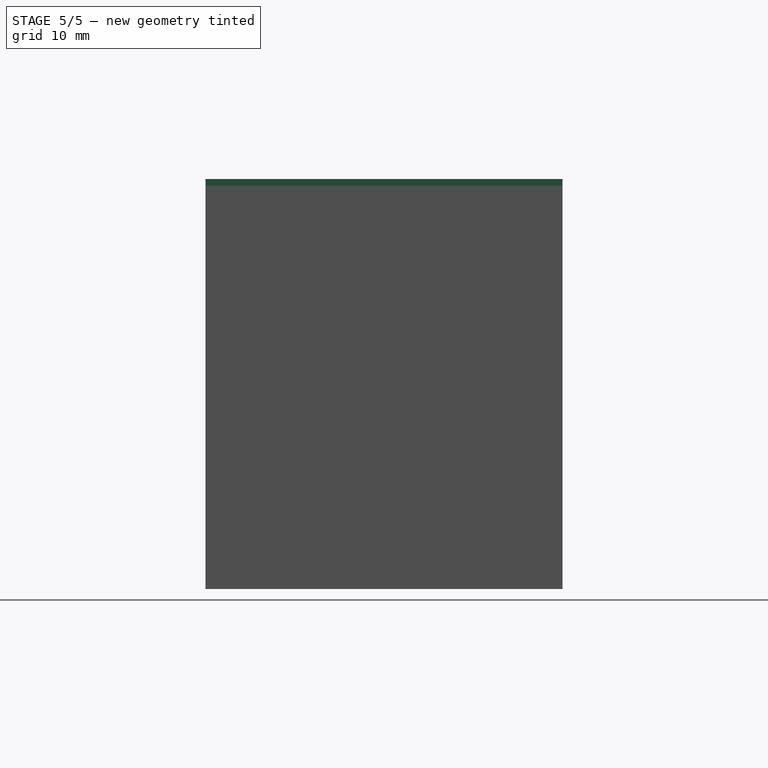
[diagram: stage 5 of 5 — right view after this stage's code; geometry added in this stage tinted green]
FEATURE [PartDesign::ShapeBinder] ShapeBinder
  Placement = pos=(0,0,60) rot=(0,0,1;0rad)
  Support = -> [Thickness]
  TraceSupport = false
FEATURE [Sketcher::SketchObject] Sketch009
  FullyConstrained = true
  MapMode = 5
  Placement = pos=(0,0,60) rot=(0,0,1;0rad)
  Support = -> [ShapeBinder]
  sketch-geometry (4):
    g0: LineSegment StartX=-37 StartY=27 StartZ=0 EndX=37 EndY=27 EndZ=0
    g1: LineSegment StartX=37 StartY=27 StartZ=0 EndX=37 EndY=-27 EndZ=0
    g2: LineSegment StartX=37 StartY=-27 StartZ=0 EndX=-37 EndY=-27 EndZ=0
    g3: LineSegment StartX=-37 StartY=-27 StartZ=0 EndX=-37 EndY=27 EndZ=0
  constraints (12):
    c: Coincident(g0,g1)
    c: Coincident(g1,g2)
    c: Coincident(g2,g3)
    c: Coincident(g3,g0)
    c: Horizontal(g0)
    c: Horizontal(g2)
    c: Vertical(g1)
    c: Vertical(g3)
    c: DistanceX(g2,g2) = 74
    c: DistanceY(g1,g1) = 54
    c: DistanceX(g0,g-1) = 37
    c: DistanceY(g-1,g0) = 27
FEATURE [PartDesign::Pad] Pad004
  Direction = (0,0,1)
  Length = 1
  Length2 = 10
  Placement = pos=(0,0,60) rot=(0,0,1;0rad)
  Profile = -> Sketch009
  ReferenceAxis = -> Sketch009 [N_Axis]
  Type = 0
FEATURE [Sketcher::SketchObject] Sketch010
  ExternalGeometry = -> [Pad004]
  FullyConstrained = true
  MapMode = 5
  Placement = pos=(0,0,60) rot=(1,0,0;3.14159rad)
  Support = -> [Pad004]
  sketch-geometry (4):
    g0: LineSegment StartX=-36 StartY=26 StartZ=0 EndX=36 EndY=26 EndZ=0
    g1: LineSegment StartX=36 StartY=26 StartZ=0 EndX=36 EndY=-26 EndZ=0
    g2: LineSegment StartX=36 StartY=-26 StartZ=0 EndX=-36 EndY=-26 EndZ=0
    g3: LineSegment StartX=-36 StartY=-26 StartZ=0 EndX=-36 EndY=26 EndZ=0
  constraints (12):
    c: Coincident(g0,g1)
    c: Coincident(g1,g2)
    c: Coincident(g2,g3)
    c: Coincident(g3,g0)
    c: Horizontal(g0)
    c: Horizontal(g2)
    c: Vertical(g1)
    c: Vertical(g3)
    c: DistanceX(g-4,g0) = 1
    c: DistanceY(g0,g-5) = 1
    c: DistanceX(g0,g-5) = 1
    c: DistanceY(g-6,g1) = 1
FEATURE [PartDesign::Pad] Pad005
  BaseFeature = -> Pad004
  Direction = (0,0,-1)
  Length = 2
  Length2 = 10
  Placement = pos=(0,0,60) rot=(0,0,1;0rad)
  Profile = -> Sketch010
  ReferenceAxis = -> Sketch010 [N_Axis]
  Type = 0
FEATURE [PartDesign::Fillet] Fillet002
  Base = -> Pad005 [Edge17,Edge24,Edge19,Edge18,Edge21,Edge20,Edge23,Edge22]
  BaseFeature = -> Pad005
  Placement = pos=(0,0,60) rot=(0,0,1;0rad)
  Radius = 1
  SupportTransform = false
  UseAllEdges = false
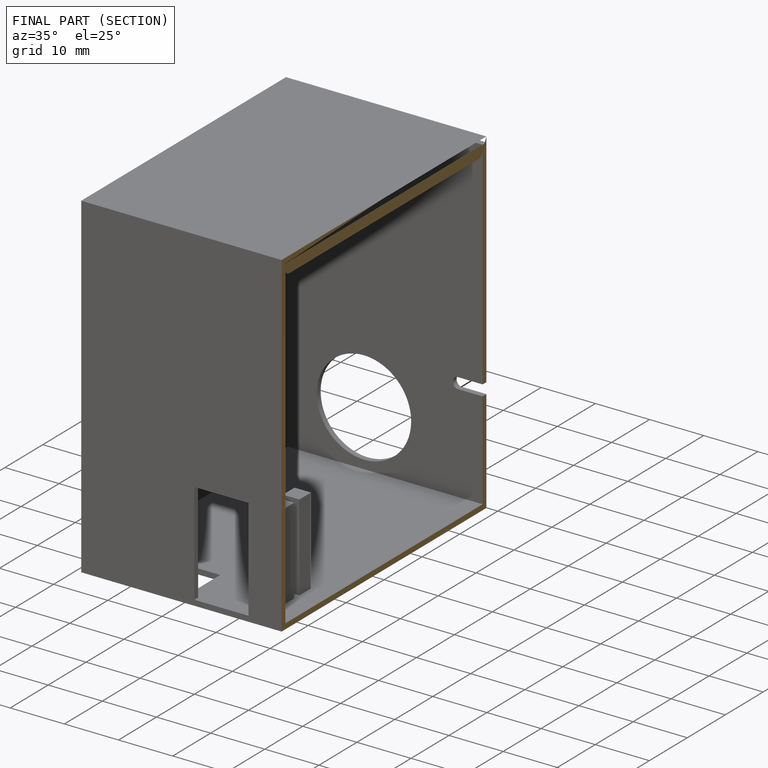
[diagram: finished part — half-section view (interior)]
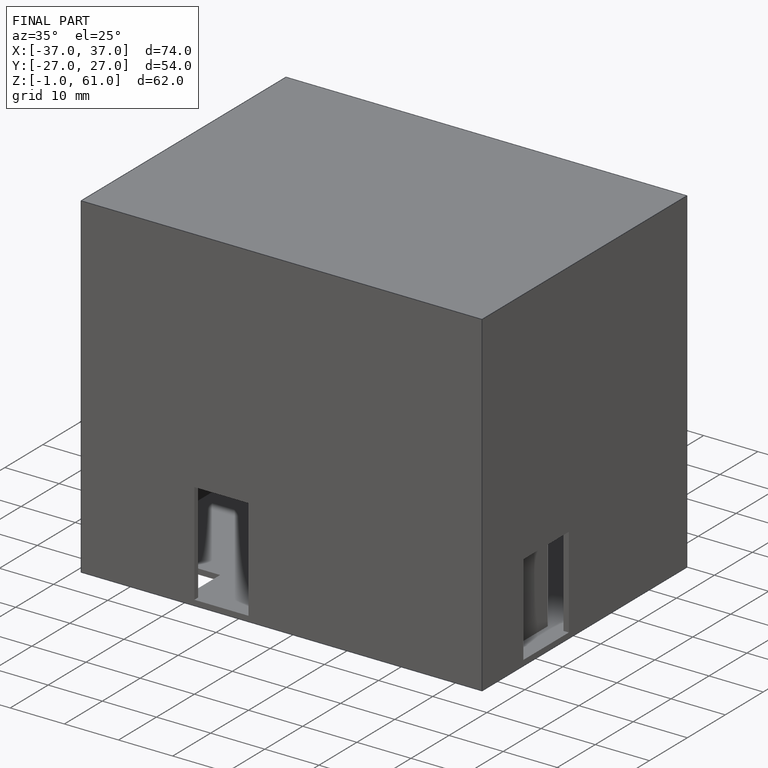
[diagram: finished part — iso view with bounding-box wireframe]
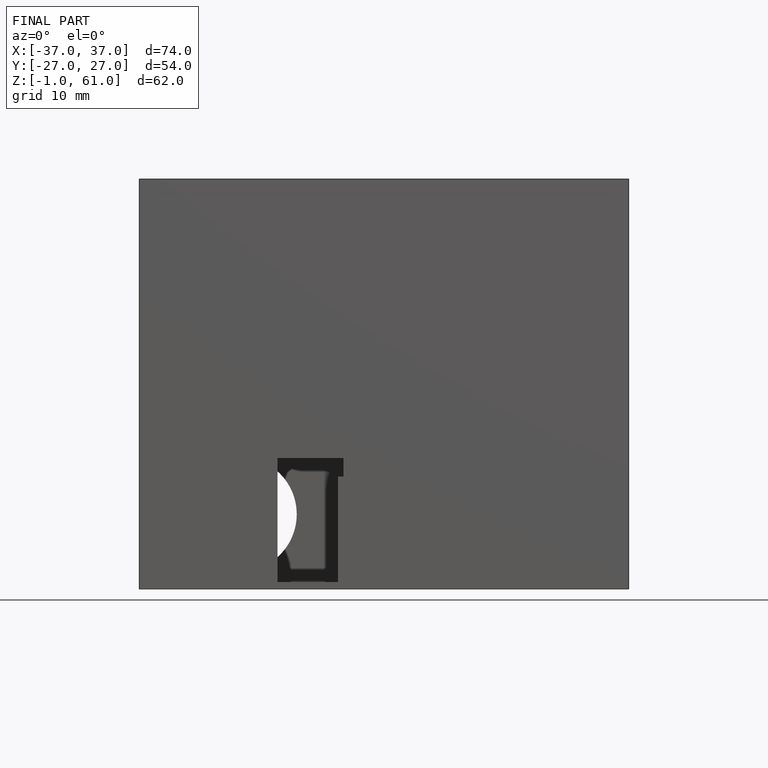
[diagram: finished part — front view with bounding-box wireframe]
